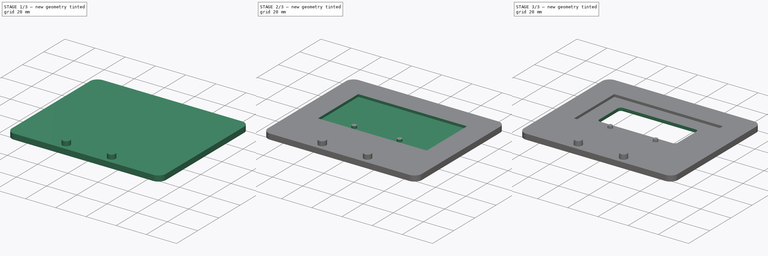
[diagram: build sequence overview — one tinted view per stage of 3, left to right]
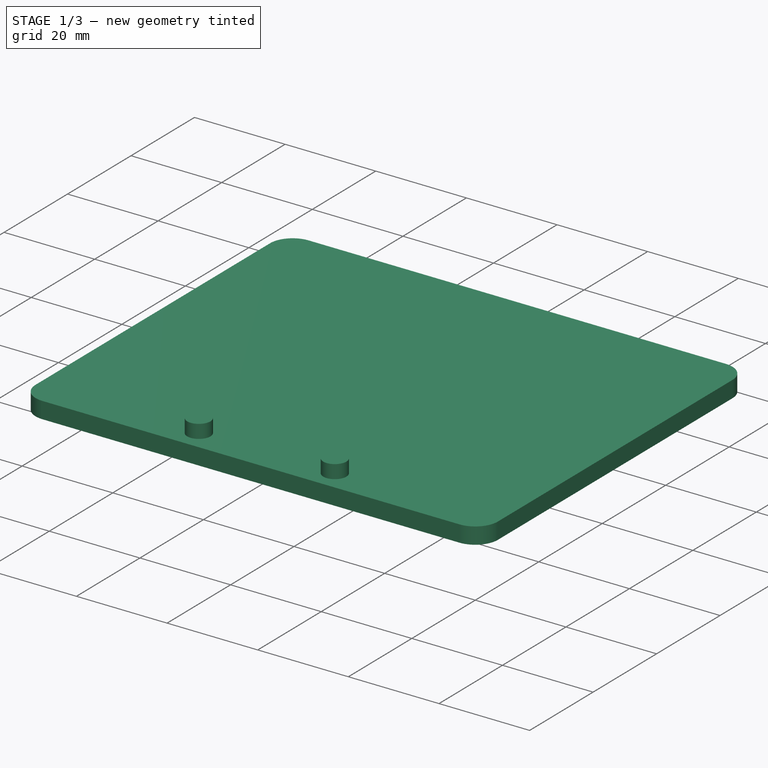
[diagram: stage 1 of 3 — iso view after this stage's code; geometry added in this stage tinted green]
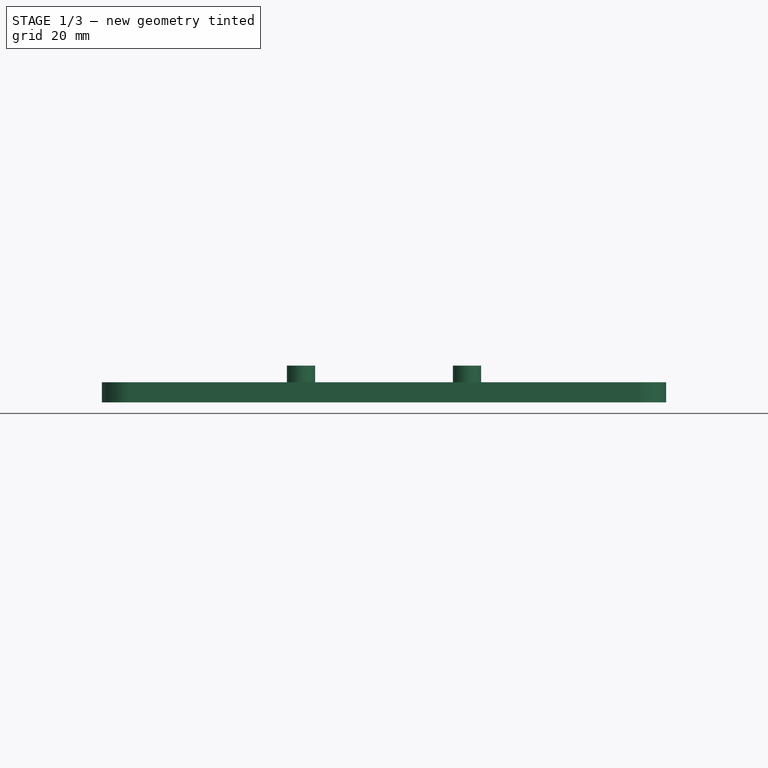
[diagram: stage 1 of 3 — front view after this stage's code; geometry added in this stage tinted green]
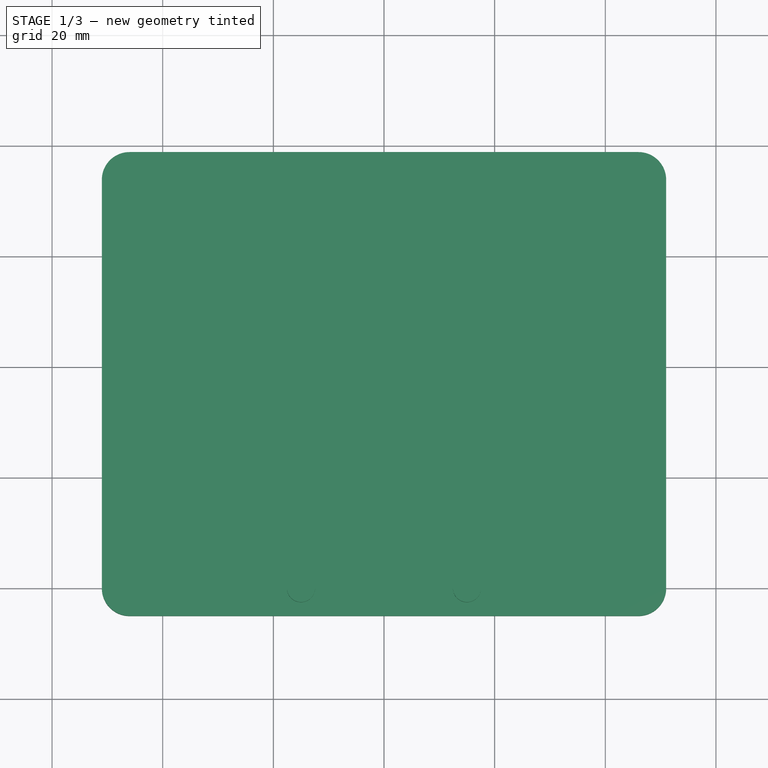
[diagram: stage 1 of 3 — top view after this stage's code; geometry added in this stage tinted green]
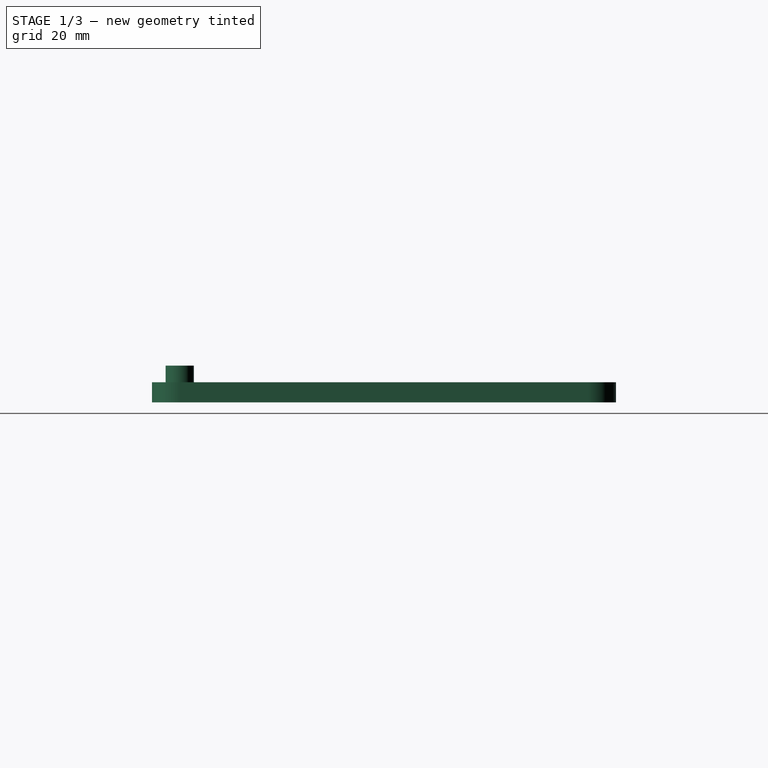
[diagram: stage 1 of 3 — right view after this stage's code; geometry added in this stage tinted green]
FCSTD DOCUMENT  (FreeCAD 1.0R39285 (Git))
Label: EC-PCB-Stencil-Registration
License: All rights reserved
LicenseURL: https://en.wikipedia.org/wiki/All_rights_reserved
objects: Sketcher::SketchObject×6, PartDesign::Pad×4, PartDesign::Pocket×2, PartDesign::Chamfer×2, Spreadsheet::Sheet×1, PartDesign::Body×1
note: 37 computed .brp shape members not serialized (recipe doc carries the construction recipe); baked Part::Feature solids carry a one-line shape summary decoded from their .brp

FEATURE [Spreadsheet::Sheet] Spreadsheet  label="Data"
  cells = A1='PCB Properties; D1='Jig Properties; A2='PCB Width; B2(pcbWidth)=52; C2='mm; D2='centersVertical; E2(centersVertical)=30; F2='mm; G2='vertical distance between PCB centers and stencil centers; A3='PCB Height; B3(pcbHeight)=18; C3='mm; D3='pcbCentersHorizontal; E3(pcbCentersHorizontal)==B2 <= 70 ? 30 : (B2 <= 90 ? 50 : (B2 <= 110 ? 70 : (B2 <= 130 ? 90 : (B2 <= 150 ? 110 : (B2 <= 170 ? 130 : (B2 <= 190 ? 150 : (B2 <= 210 ? 170 : 190))))))); F3='mm; G3='horizontal distance between the PCB centers, calculated from PCB width; A4='PCB Thickness; B4(pcbThickness)=1.65; C4='mm; D4='stencilCentersHorizontal; E4(stencilCentersHorizontal)==B2 <= 70 ? 30 : (B2 <= 90 ? 50 : (B2 <= 110 ? 70 : (B2 <= 130 ? 90 : (B2 <= 150 ? 110 : (B2 <= 170 ? 130 : (B2 <= 190 ? 150 : (B2 <= 210 ? 170 : 190))))))); F4='mm; G4='horizontal distance between the stencil centers, calculated from PCB width; A5='PCB edge filletRadius; B5(pcbFilletRadius)=2; C5='mm; D5='pcbCentersDiameter; E5(pcbCentersDiameter)=3; F5='mm; A6='printMargin; B6(printMargin)=0.1; C6='mm : this gets added to diameter of the centers, and allows a perfect with the holes in PCB and stencil; D6='stencilCentersDiameter; E6(stencilCentersDiameter)=5; F6='mm; A7='singleSided; B7(isSingleSided)=0; C7='1 (singleSided) or 0 (doubleSided) : a pocket with size of the PCB allows to apply paste on both sides; D9='extraLeftRight; E9(extraLeftRight)=25; F9='mm; D10='extraTop; E10(extraTop)=25; F10='mm; D11='baseThickness; E11(baseThickness)=2; F11='mm; G11='thickness of the jig under the PCB. May need to increase for double sided PCB; D13='filletRadius; E13(filletRadius)=5; F13='mm; G13='fillet radius of the outside corners of the jig; D14='centersChamfer; E14(centersChamfer)=0.2; F14='mm; G14='chamfer to make centers slightly conical, for exact fit; D15='verticalOffset; E15(verticalOffset)=0.2; F15='mm; G15='finetune the distance between the pcbCenters and stencilCenters; D16='resultingWidth; E16==pcbWidth + 2 * extraLeftRight; F16='mm; G16='adjust 'extraLeftRight' so this is somewhat equal to your stencil width. It stabilizes the stencil during paste application
FEATURE [Sketcher::SketchObject] Sketch  label="StencilBasesketch"
  ArcFitTolerance = 1e-06
  AttachmentOffset = pos=(0,0,2) rot=(0,0,1;0rad)
  AttachmentSupport = -> [XY_Plane]
  FullyConstrained = true
  MakeInternals = false
  MapMode = 5
  Placement = pos=(0,0,2) rot=(0,0,1;0rad)
  expr: .AttachmentOffset.Base.z = <<Data>>.baseThickness
  expr: Constraints[18] = <<Data>>.filletRadius
  expr: Constraints[20] = 25 mm
  expr: Constraints[8] = <<Data>>.pcbWidth + 2 * <<Data>>.extraLeftRight
  sketch-geometry (9):
    g0: LineSegment StartX=-51 StartY=25 StartZ=0 EndX=-51 EndY=0 EndZ=0
    g1: LineSegment StartX=-46 StartY=-5 StartZ=0 EndX=46 EndY=-5 EndZ=0
    g2: LineSegment StartX=51 StartY=-1e-16 StartZ=0 EndX=51 EndY=25 EndZ=0
    g3: LineSegment StartX=51 StartY=25 StartZ=0 EndX=-51 EndY=25 EndZ=0
    g4: GeomPoint X=0 Y=-5 Z=0
    g5: ArcOfCircle CenterX=-46 CenterY=2e-16 CenterZ=0 NormalX=0 NormalY=0 NormalZ=1 AngleXU=0 Radius=5 StartAngle=3.14159 EndAngle=4.71239
    g6: GeomPoint [constr] X=-51 Y=-5 Z=0
    g7: ArcOfCircle CenterX=46 CenterY=-1e-16 CenterZ=0 NormalX=0 NormalY=0 NormalZ=1 AngleXU=0 Radius=5 StartAngle=4.71239 EndAngle=6.28319
    g8: GeomPoint [constr] X=51 Y=-5 Z=0
  constraints (21):
    c: Coincident(g2,g3)
    c: Coincident(g3,g0)
    c: Vertical(g0)
    c: Vertical(g2)
    c: Horizontal(g1)
    c: Horizontal(g3)
    c: Symmetric(g6,g8,g4)
    c: PointOnObject(g4,g-2)
    c: DistanceX(g6,g8) = 102
    c: DistanceY(g4,g-1) = 5
    c: PointOnObject(g6,g0)
    c: PointOnObject(g6,g1)
    c: Tangent(g0,g5) = -1.5708
    c: Tangent(g1,g5) = -1.5708
    c: PointOnObject(g8,g2)
    c: PointOnObject(g8,g1)
    c: Tangent(g2,g7) = -1.5708
    c: Tangent(g1,g7) = -1.5708
    c: Radius(g5) = 5
    c: Equal(g5,g7)
    c: DistanceY(g-1,g0) = 25
FEATURE [Sketcher::SketchObject] Sketch001  label="BaseSketch"
  ArcFitTolerance = 1e-06
  AttachmentSupport = -> [XY_Plane]
  FullyConstrained = true
  MakeInternals = false
  MapMode = 5
  expr: Constraints[24] = <<Data>>.filletRadius
  expr: Constraints[28] = <<Data>>.pcbHeight + <<Data>>.extraTop + <<Data>>.centersVertical + 5.85
  expr: Constraints[4] = <<Data>>.pcbWidth + 2 * <<Data>>.extraLeftRight
  sketch-geometry (13):
    g0: LineSegment StartX=-51 StartY=73.85 StartZ=0 EndX=-51 EndY=0 EndZ=0
    g1: LineSegment StartX=-46 StartY=-5 StartZ=0 EndX=46 EndY=-5 EndZ=0
    g2: LineSegment StartX=51 StartY=1e-16 StartZ=0 EndX=51 EndY=73.85 EndZ=0
    g3: LineSegment StartX=46 StartY=78.85 StartZ=0 EndX=-46 EndY=78.85 EndZ=0
    g4: GeomPoint X=0 Y=-5 Z=0
    g5: ArcOfCircle CenterX=-46 CenterY=73.85 CenterZ=0 NormalX=0 NormalY=0 NormalZ=1 AngleXU=0 Radius=5 StartAngle=1.5708 EndAngle=3.14159
    g6: GeomPoint [constr] X=-51 Y=78.85 Z=0
    g7: ArcOfCircle CenterX=46 CenterY=73.85 CenterZ=0 NormalX=0 NormalY=0 NormalZ=1 AngleXU=0 Radius=5 StartAngle=3.685e-13 EndAngle=1.5708
    g8: GeomPoint [constr] X=51 Y=78.85 Z=0
    g9: ArcOfCircle CenterX=46 CenterY=-1e-16 CenterZ=0 NormalX=0 NormalY=0 NormalZ=1 AngleXU=0 Radius=5 StartAngle=4.71239 EndAngle=6.28319
    g10: GeomPoint [constr] X=51 Y=-5 Z=0
    g11: ArcOfCircle CenterX=-46 CenterY=5e-16 CenterZ=0 NormalX=0 NormalY=0 NormalZ=1 AngleXU=0 Radius=5 StartAngle=3.14159 EndAngle=4.71239
    g12: GeomPoint [constr] X=-51 Y=-5 Z=0
  constraints (29):
    c: Vertical(g0)
    c: Vertical(g2)
    c: Horizontal(g1)
    c: Horizontal(g3)
    c: DistanceX(g12,g10) = 102
    c: Symmetric(g12,g10,g4)
    c: PointOnObject(g4,g-2)
    c: DistanceY(g4,g-1) = 5
    c: PointOnObject(g6,g3)
    c: PointOnObject(g6,g0)
    c: Tangent(g3,g5) = -1.5708
    c: Tangent(g0,g5) = -1.5708
    c: PointOnObject(g8,g3)
    c: PointOnObject(g8,g2)
    c: Tangent(g3,g7) = -1.5708
    c: Tangent(g2,g7) = -1.5708
    c: PointOnObject(g10,g2)
    c: PointOnObject(g10,g1)
    c: Tangent(g2,g9) = -1.5708
    c: Tangent(g1,g9) = -1.5708
    c: PointOnObject(g12,g0)
    c: PointOnObject(g12,g1)
    c: Tangent(g0,g11) = -1.5708
    c: Tangent(g1,g11) = -1.5708
    c: Radius(g5) = 5
    c: Equal(g5,g7)
    c: Equal(g5,g11)
    c: Equal(g5,g9)
    c: DistanceY(g-1,g3) = 78.85
FEATURE [PartDesign::Pad] Pad  label="Base"
  Direction = (0,0,1)
  Length = 3.65
  Length2 = 10
  Profile = -> Sketch001
  ReferenceAxis = -> Sketch001 [N_Axis]
  Refine = true
  Suppressed = false
  Type = 0
  expr: Length = <<Data>>.baseThickness + <<Data>>.pcbThickness
FEATURE [PartDesign::Pad] Pad001  label="StencilBase"
  BaseFeature = -> Pad
  Direction = (0,0,1)
  Length = 1.65
  Length2 = 10
  Profile = -> Sketch
  ReferenceAxis = -> Sketch [N_Axis]
  Refine = true
  Suppressed = true
  Type = 0
  expr: Length = <<Data>>.pcbThickness
FEATURE [Sketcher::SketchObject] Sketch002  label="StencilCentersSketch"
  ArcFitTolerance = 1e-06
  AttachmentOffset = pos=(0,0,3.65) rot=(0,0,1;0rad)
  AttachmentSupport = -> [XY_Plane]
  FullyConstrained = true
  MakeInternals = false
  MapMode = 5
  Placement = pos=(0,0,3.65) rot=(0,0,1;0rad)
  expr: .AttachmentOffset.Base.z = <<Data>>.baseThickness + <<Data>>.pcbThickness
  expr: Constraints[2] = <<Data>>.stencilCentersHorizontal
  expr: Constraints[3] = <<Data>>.stencilCentersDiameter + <<Data>>.printMargin
  sketch-geometry (2):
    g0: Circle CenterX=-15 CenterY=0 CenterZ=0 NormalX=0 NormalY=0 NormalZ=1 AngleXU=0 Radius=2.55
    g1: Circle CenterX=15 CenterY=0 CenterZ=0 NormalX=0 NormalY=0 NormalZ=1 AngleXU=0 Radius=2.55
  constraints (5):
    c: PointOnObject(g0,g-1)
    c: Symmetric(g0,g1,g-1)
    c: DistanceX(g0,g1) = 30
    c: Diameter(g0) = 5.1
    c: Equal(g0,g1)
FEATURE [PartDesign::Pad] Pad002  label="StencilCenters"
  BaseFeature = -> Pad001
  Direction = (0,0,1)
  Length = 3
  Length2 = 10
  Profile = -> Sketch002
  ReferenceAxis = -> Sketch002 [N_Axis]
  Refine = true
  Suppressed = false
  Type = 0
  expr: Length = 3
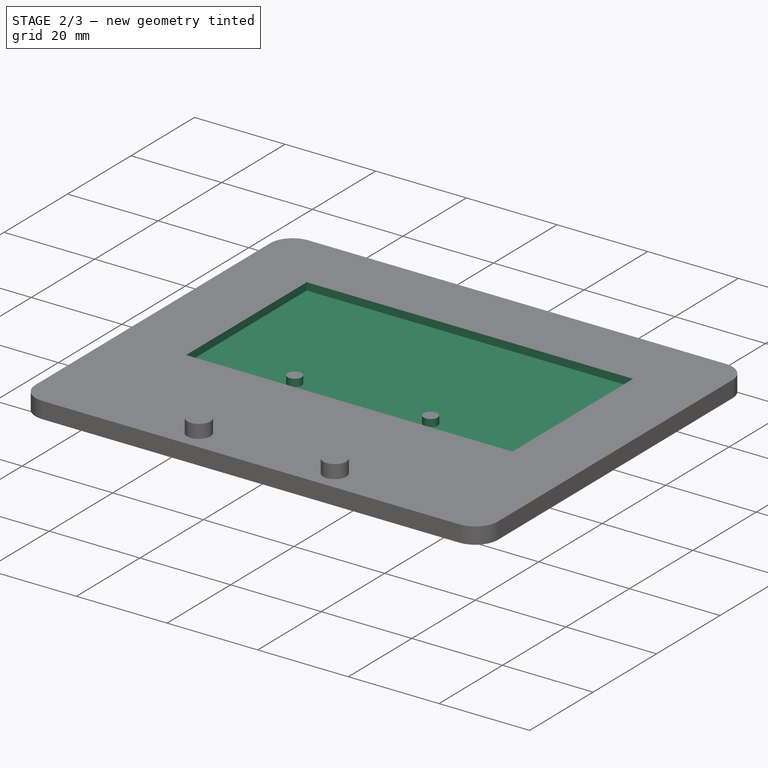
[diagram: stage 2 of 3 — iso view after this stage's code; geometry added in this stage tinted green]
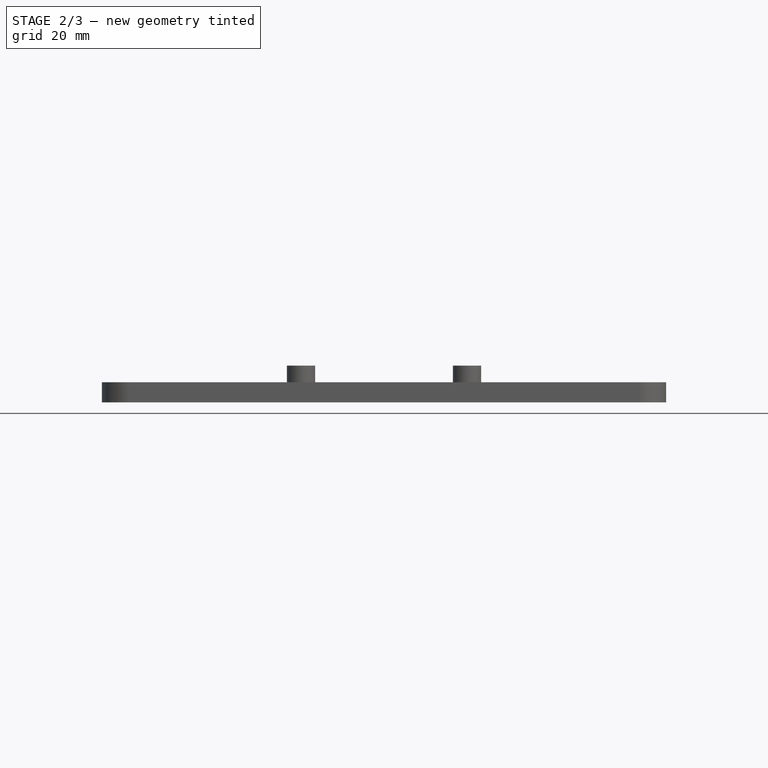
[diagram: stage 2 of 3 — front view after this stage's code; geometry added in this stage tinted green]
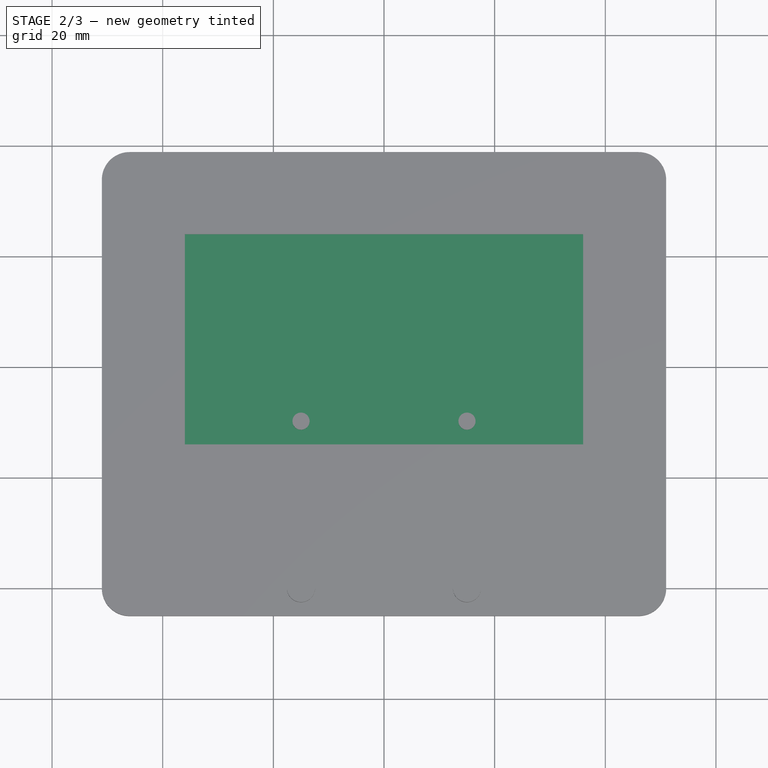
[diagram: stage 2 of 3 — top view after this stage's code; geometry added in this stage tinted green]
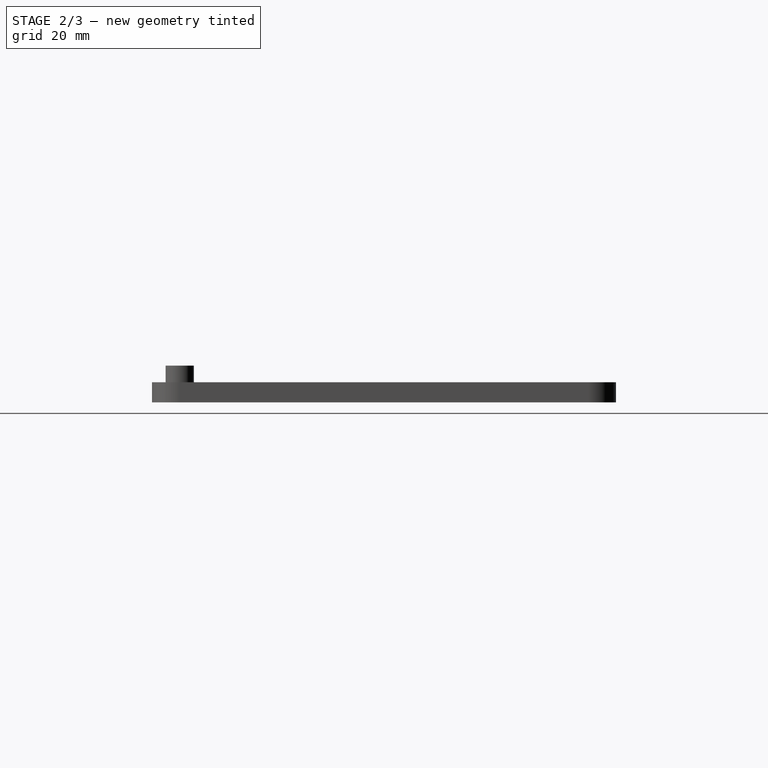
[diagram: stage 2 of 3 — right view after this stage's code; geometry added in this stage tinted green]
FEATURE [Sketcher::SketchObject] Sketch003  label="PcbCentersSketch"
  ArcFitTolerance = 1e-06
  AttachmentOffset = pos=(0,0,2) rot=(0,0,1;0rad)
  AttachmentSupport = -> [XY_Plane]
  FullyConstrained = true
  MakeInternals = false
  MapMode = 5
  Placement = pos=(0,0,2) rot=(0,0,1;0rad)
  expr: .AttachmentOffset.Base.z = <<Data>>.baseThickness
  expr: Constraints[1] = <<Data>>.pcbCentersHorizontal
  expr: Constraints[2] = <<Data>>.pcbCentersDiameter + <<Data>>.printMargin
  expr: Constraints[3] = <<Data>>.centersVertical + <<Data>>.verticalOffset
  sketch-geometry (2):
    g0: Circle CenterX=-15 CenterY=30.2 CenterZ=0 NormalX=0 NormalY=0 NormalZ=1 AngleXU=0 Radius=1.55
    g1: Circle CenterX=15 CenterY=30.2 CenterZ=0 NormalX=0 NormalY=0 NormalZ=1 AngleXU=0 Radius=1.55
  constraints (5):
    c: Symmetric(g0,g1,g-2)
    c: DistanceX(g0,g1) = 30
    c: Diameter(g0) = 3.1
    c: DistanceY(g-1,g0) = 30.2
    c: Equal(g0,g1)
FEATURE [Sketcher::SketchObject] Sketch005  label="pcbComponentsPocketSketch"
  ArcFitTolerance = 1e-06
  AttachmentSupport = -> [XY_Plane]
  FullyConstrained = true
  MakeInternals = false
  MapMode = 5
  expr: Constraints[28] = <<Data>>.pcbFilletRadius
  expr: Constraints[4] = <<Data>>.centersVertical + 3.5
  expr: Constraints[5] = <<Data>>.pcbWidth
  expr: Constraints[6] = <<Data>>.pcbHeight + 2 * 1.8
  sketch-geometry (13):
    g0: LineSegment StartX=-26 StartY=53.1 StartZ=0 EndX=-26 EndY=35.5 EndZ=0
    g1: LineSegment StartX=-24 StartY=33.5 StartZ=0 EndX=24 EndY=33.5 EndZ=0
    g2: LineSegment StartX=26 StartY=35.5 StartZ=0 EndX=26 EndY=53.1 EndZ=0
    g3: LineSegment StartX=24 StartY=55.1 StartZ=0 EndX=-24 EndY=55.1 EndZ=0
    g4: GeomPoint X=0 Y=33.5 Z=0
    g5: ArcOfCircle CenterX=-24 CenterY=53.1 CenterZ=0 NormalX=0 NormalY=0 NormalZ=1 AngleXU=0 Radius=2 StartAngle=1.5708 EndAngle=3.14159
    g6: GeomPoint [constr] X=-26 Y=55.1 Z=0
    g7: ArcOfCircle CenterX=-24 CenterY=35.5 CenterZ=0 NormalX=0 NormalY=0 NormalZ=1 AngleXU=0 Radius=2 StartAngle=3.14159 EndAngle=4.71239
    g8: GeomPoint [constr] X=-26 Y=33.5 Z=0
    g9: ArcOfCircle CenterX=24 CenterY=35.5 CenterZ=0 NormalX=0 NormalY=0 NormalZ=1 AngleXU=0 Radius=2 StartAngle=4.71239 EndAngle=6.28319
    g10: GeomPoint [constr] X=26 Y=33.5 Z=0
    g11: ArcOfCircle CenterX=24 CenterY=53.1 CenterZ=0 NormalX=0 NormalY=0 NormalZ=1 AngleXU=0 Radius=2 StartAngle=0 EndAngle=1.5708
    g12: GeomPoint [constr] X=26 Y=55.1 Z=0
  constraints (29):
    c: Vertical(g0)
    c: Vertical(g2)
    c: Horizontal(g1)
    c: Horizontal(g3)
    c: DistanceY(g-1,g10) = 33.5
    c: DistanceX(g6,g12) = 52
    c: DistanceY(g10,g12) = 21.6
    c: Symmetric(g8,g10,g4)
    c: PointOnObject(g4,g-2)
    c: PointOnObject(g6,g3)
    c: PointOnObject(g6,g0)
    c: Tangent(g3,g5) = -1.5708
    c: Tangent(g0,g5) = -1.5708
    c: PointOnObject(g8,g0)
    c: PointOnObject(g8,g1)
    c: Tangent(g0,g7) = -1.5708
    c: Tangent(g1,g7) = -1.5708
    c: PointOnObject(g10,g2)
    c: PointOnObject(g10,g1)
    c: Tangent(g2,g9) = -1.5708
    c: Tangent(g1,g9) = -1.5708
    c: PointOnObject(g12,g2)
    c: PointOnObject(g12,g3)
    c: Tangent(g2,g11) = -1.5708
    c: Tangent(g3,g11) = -1.5708
    c: Equal(g5,g11)
    c: Equal(g11,g9)
    c: Equal(g9,g7)
    c: Radius(g7) = 2
FEATURE [Sketcher::SketchObject] Sketch006  label="pcbPocketSketch"
  ArcFitTolerance = 1e-06
  AttachmentOffset = pos=(0,0,3.65) rot=(0,0,1;0rad)
  AttachmentSupport = -> [XY_Plane]
  FullyConstrained = true
  MakeInternals = false
  MapMode = 5
  Placement = pos=(0,0,3.65) rot=(0,0,1;0rad)
  expr: .AttachmentOffset.Base.z = <<Data>>.baseThickness + <<Data>>.pcbThickness
  expr: Constraints[10] = <<Data>>.centersVertical - 4
  expr: Constraints[11] = <<Data>>.pcbHeight + 20
  expr: Constraints[12] = <<Data>>.pcbWidth + 20
  sketch-geometry (5):
    g0: LineSegment StartX=-36 StartY=64 StartZ=0 EndX=-36 EndY=26 EndZ=0
    g1: LineSegment StartX=-36 StartY=26 StartZ=0 EndX=36 EndY=26 EndZ=0
    g2: LineSegment StartX=36 StartY=26 StartZ=0 EndX=36 EndY=64 EndZ=0
    g3: LineSegment StartX=36 StartY=64 StartZ=0 EndX=-36 EndY=64 EndZ=0
    g4: GeomPoint X=0 Y=26 Z=0
  constraints (13):
    c: Coincident(g0,g1)
    c: Coincident(g1,g2)
    c: Coincident(g2,g3)
    c: Coincident(g3,g0)
    c: Vertical(g0)
    c: Vertical(g2)
    c: Horizontal(g1)
    c: Horizontal(g3)
    c: Symmetric(g1,g1,g4)
    c: PointOnObject(g4,g-2)
    c: DistanceY(g-1,g4) = 26
    c: DistanceY(g2,g2) = 38
    c: DistanceX(g3,g3) = 72
FEATURE [PartDesign::Pocket] Pocket001  label="pcbPocket"
  BaseFeature = -> Pad002
  Direction = (0,0,-1)
  Length = 1.65
  Length2 = 5
  Profile = -> Sketch006
  ReferenceAxis = -> Sketch006 [N_Axis]
  Refine = true
  Suppressed = false
  Type = 0
  expr: Length = <<Data>>.pcbThickness
FEATURE [PartDesign::Pad] Pad003  label="PcbCenters"
  BaseFeature = -> Pocket001
  Direction = (0,0,1)
  Length = 1.65
  Length2 = 10
  Profile = -> Sketch003
  ReferenceAxis = -> Sketch003 [N_Axis]
  Refine = true
  Suppressed = false
  Type = 0
  expr: Length = <<Data>>.pcbThickness
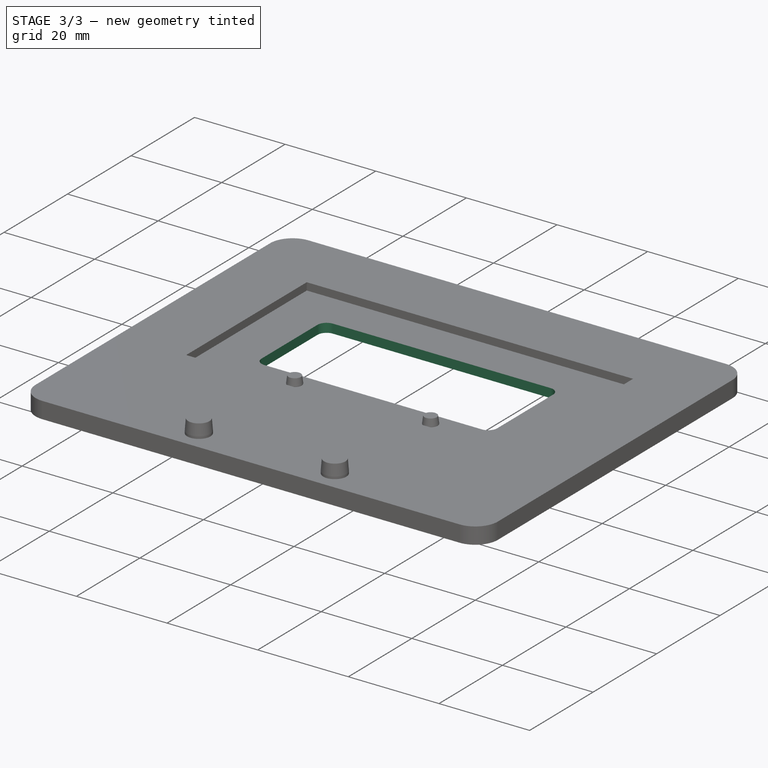
[diagram: stage 3 of 3 — iso view after this stage's code; geometry added in this stage tinted green]
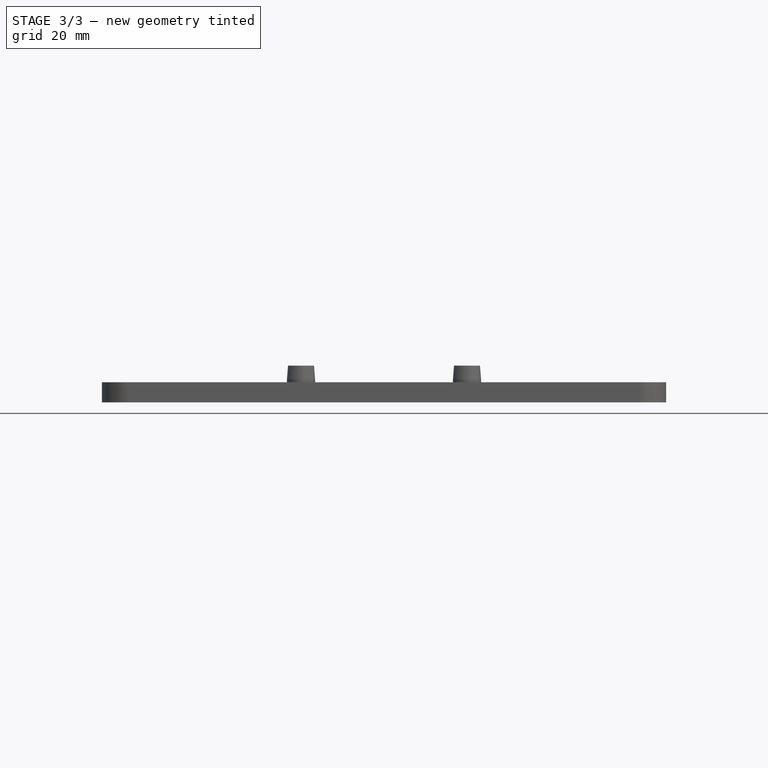
[diagram: stage 3 of 3 — front view after this stage's code; geometry added in this stage tinted green]
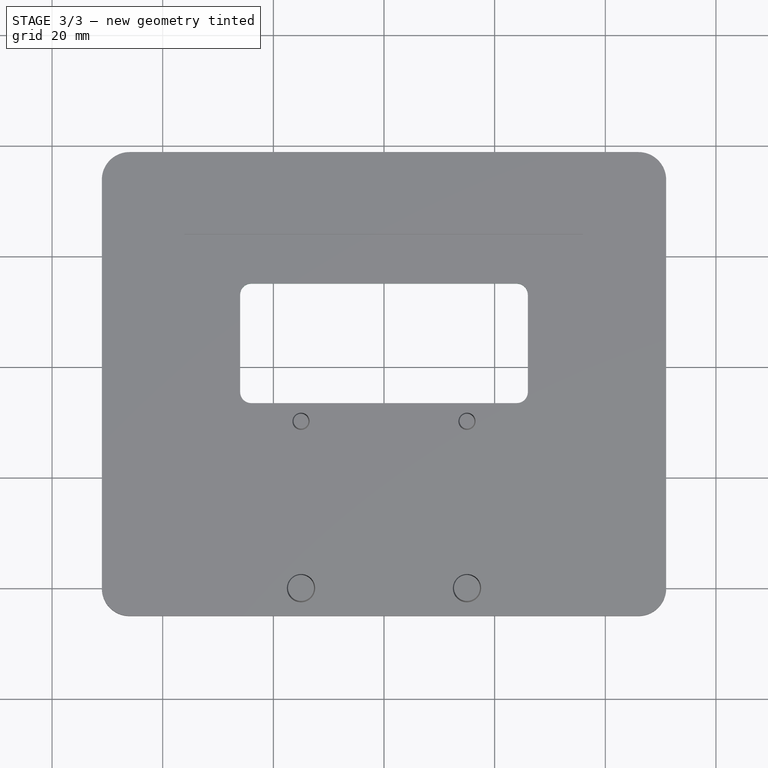
[diagram: stage 3 of 3 — top view after this stage's code; geometry added in this stage tinted green]
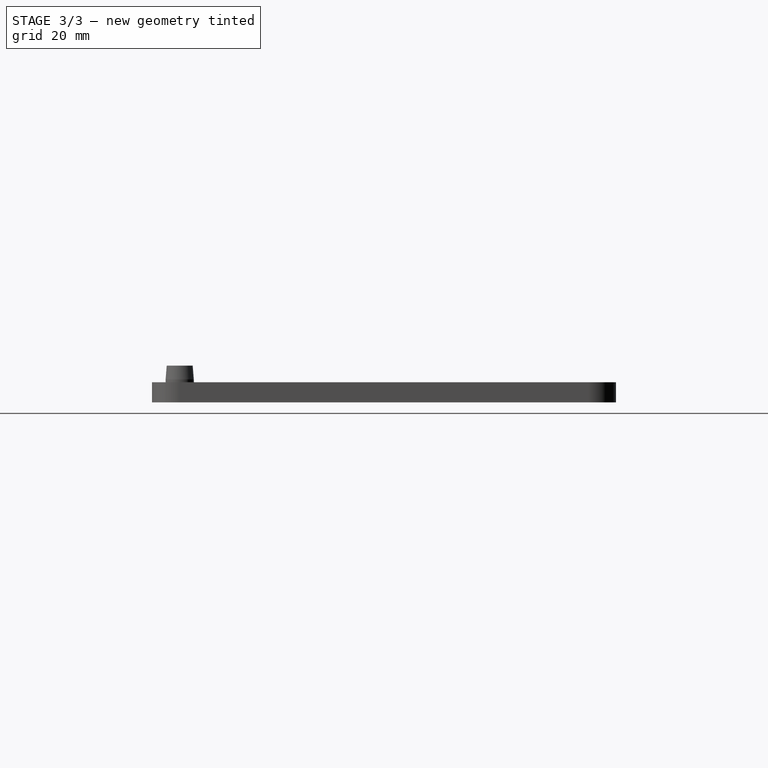
[diagram: stage 3 of 3 — right view after this stage's code; geometry added in this stage tinted green]
FEATURE [PartDesign::Chamfer] Chamfer  label="ChamferStencilCenters"
  Angle = 45
  Base = -> Pad003 [Edge32,Edge34]
  BaseFeature = -> Pad003
  ChamferType = 1
  FlipDirection = false
  Refine = true
  Size = 2.5
  Size2 = 0.2
  SupportTransform = false
  Suppressed = false
  UseAllEdges = false
  expr: Size2 = <<Data>>.centersChamfer
FEATURE [PartDesign::Chamfer] Chamfer001  label="ChamferPcbCenters"
  Angle = 45
  Base = -> Chamfer [Edge50,Edge52]
  BaseFeature = -> Chamfer
  ChamferType = 1
  FlipDirection = false
  Refine = true
  Size = 1.55
  Size2 = 0.2
  SupportTransform = false
  Suppressed = false
  UseAllEdges = false
  expr: Size = <<Data>>.pcbThickness - 0.1
  expr: Size2 = <<Data>>.centersChamfer
FEATURE [PartDesign::Pocket] Pocket  label="pcbComponentsPocket"
  BaseFeature = -> Chamfer001
  Direction = (0,0,-1)
  Length = 5
  Length2 = 5
  Profile = -> Sketch005
  ReferenceAxis = -> Sketch005 [N_Axis]
  Refine = true
  Reversed = true
  Suppressed = false
  Type = 1
  expr: Suppressed = <<Data>>.isSingleSided
FEATURE [PartDesign::Body] Body  label="StencilAlignmentJig"
  AllowCompound = false
  Group = -> [Sketch001,Pad,Sketch005,Sketch,Pad001,Sketch002,Pad002,Pocket001,Sketch006,Sketch003,Pad003,Chamfer,Chamfer001,Pocket]
  Origin = -> Origin
  Tip = -> Pocket
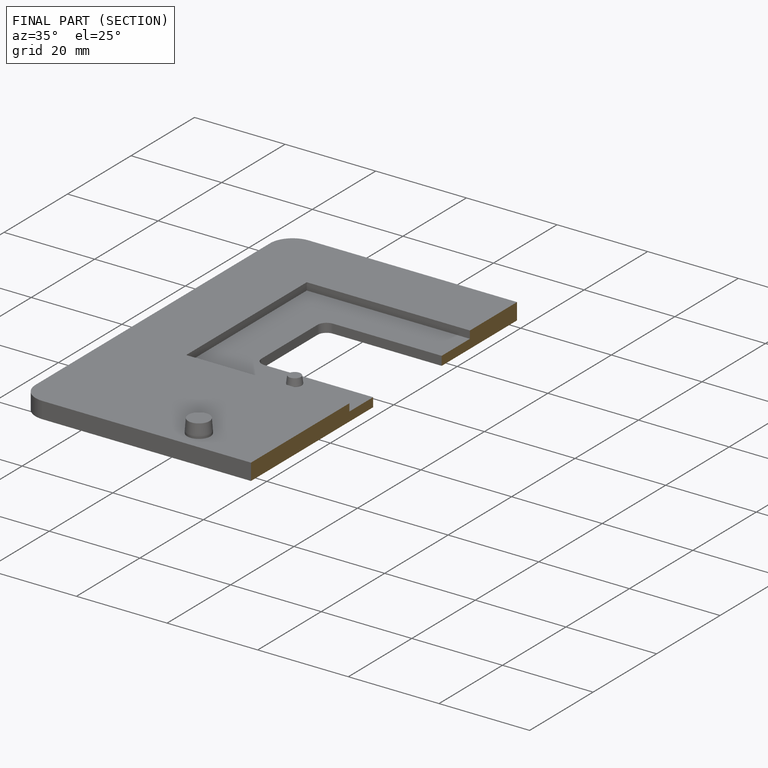
[diagram: finished part — half-section view (interior)]
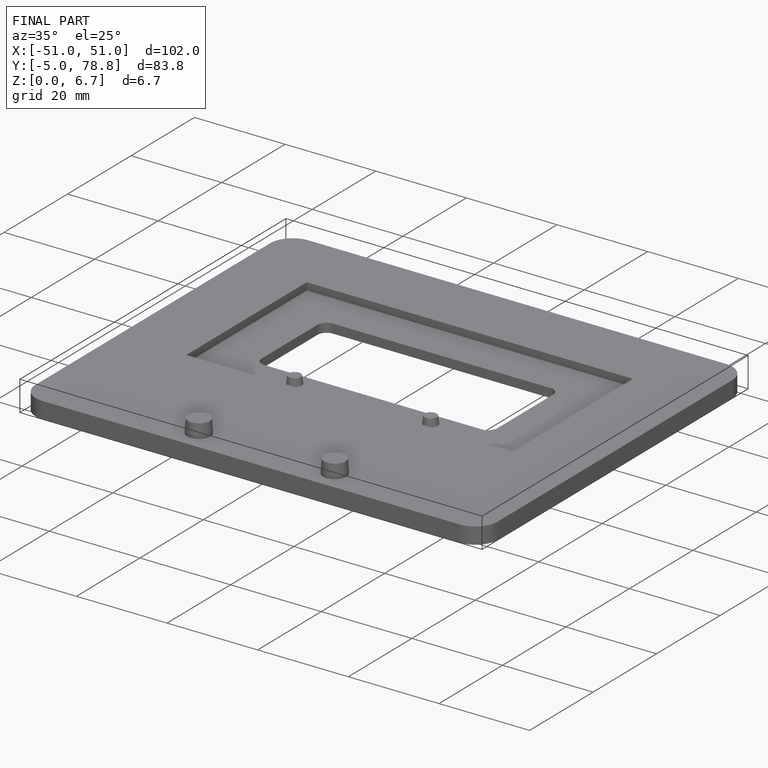
[diagram: finished part — iso view with bounding-box wireframe]
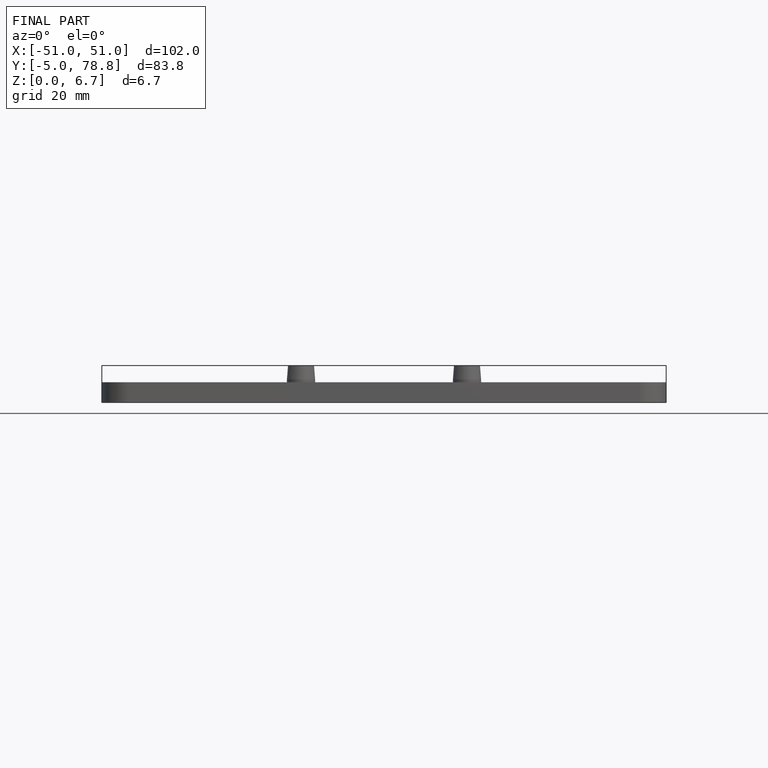
[diagram: finished part — front view with bounding-box wireframe]
